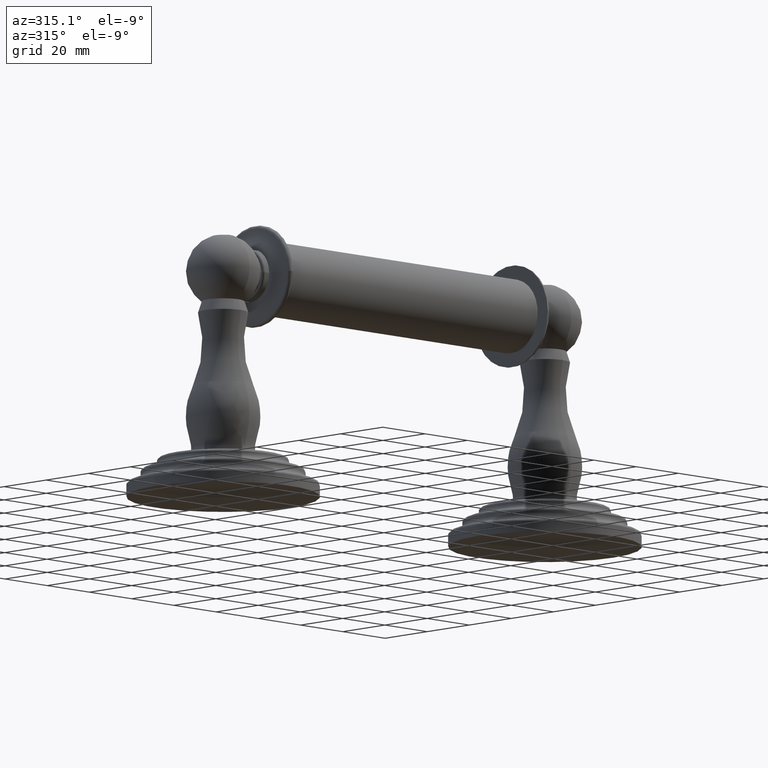
[diagram: clean part render]
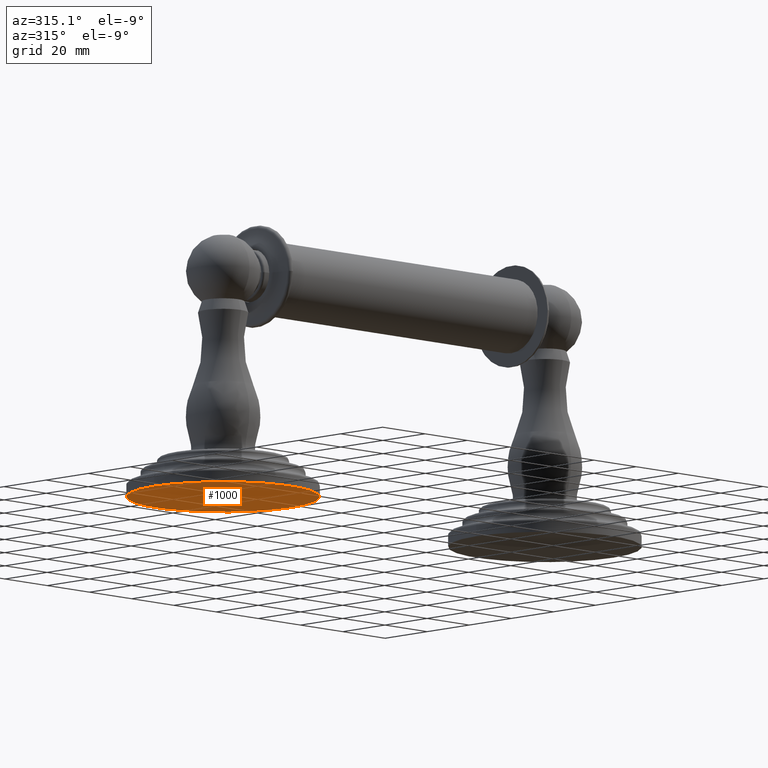
[diagram: same view with one face highlighted and labeled with its STEP entity id]
A machine part, auxiliary view. The second image highlights one B-rep face of the part: STEP entity #1000.
In plain terms, the highlighted planar face has unit normal (0, 0, 1).
Its self-contained STEP definition (entity closure, byte-faithful):
#314=CARTESIAN_POINT('',(-3.E0,0.E0,0.E0));
#315=DIRECTION('',(0.E0,0.E0,-1.E0));
#316=DIRECTION('',(1.E0,0.E0,0.E0));
#317=AXIS2_PLACEMENT_3D('',#314,#315,#316);
#337=CARTESIAN_POINT('',(-3.E0,0.E0,0.E0));
#338=DIRECTION('',(0.E0,0.E0,1.E0));
#339=DIRECTION('',(1.E0,0.E0,0.E0));
#340=AXIS2_PLACEMENT_3D('',#337,#338,#339);
#675=CARTESIAN_POINT('',(-1.72E0,0.E0,0.E0));
#676=CARTESIAN_POINT('',(-4.28E0,0.E0,0.E0));
#677=VERTEX_POINT('',#675);
#678=VERTEX_POINT('',#676);
#991=CARTESIAN_POINT('',(-3.E0,0.E0,0.E0));
#992=DIRECTION('',(0.E0,0.E0,1.E0));
#993=DIRECTION('',(1.E0,0.E0,0.E0));
#994=AXIS2_PLACEMENT_3D('',#991,#992,#993);
#995=PLANE('',#994);
#996=ORIENTED_EDGE('',*,*,#957,.F.);
#997=ORIENTED_EDGE('',*,*,#978,.T.);
#998=EDGE_LOOP('',(#996,#997));
#999=FACE_OUTER_BOUND('',#998,.F.);
#318=CIRCLE('',#317,1.28E0);
#341=CIRCLE('',#340,1.28E0);
#957=EDGE_CURVE('',#677,#678,#318,.T.);
#978=EDGE_CURVE('',#677,#678,#341,.T.);
#1000=ADVANCED_FACE('',(#999),#995,.F.);